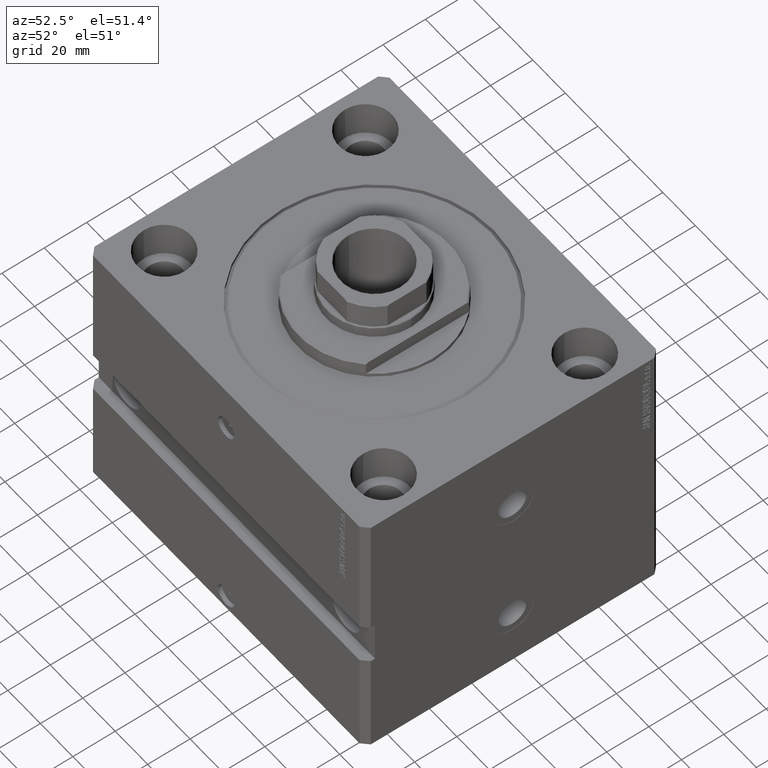
[diagram: clean part render]
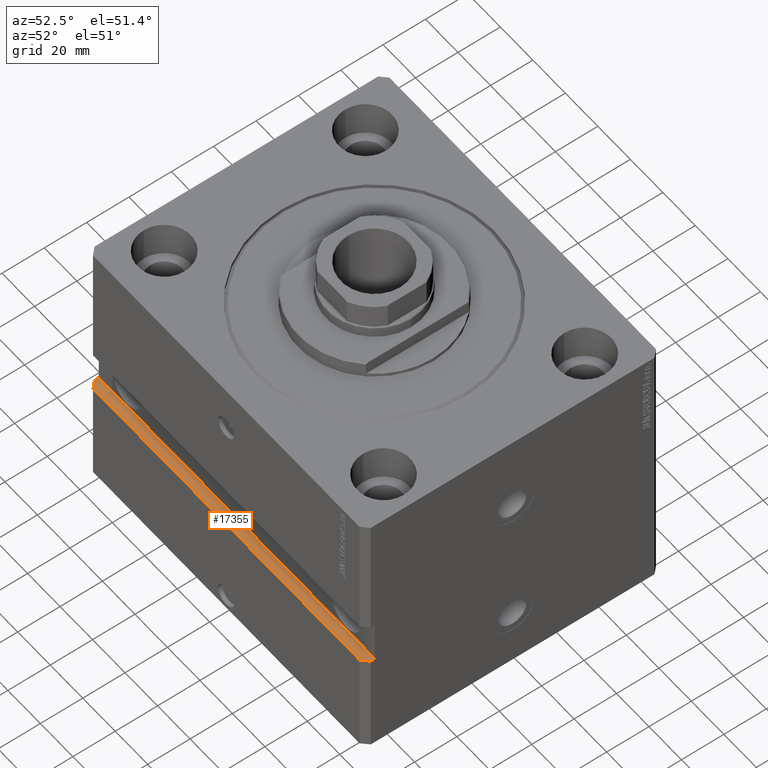
[diagram: same view with one face highlighted and labeled with its STEP entity id]
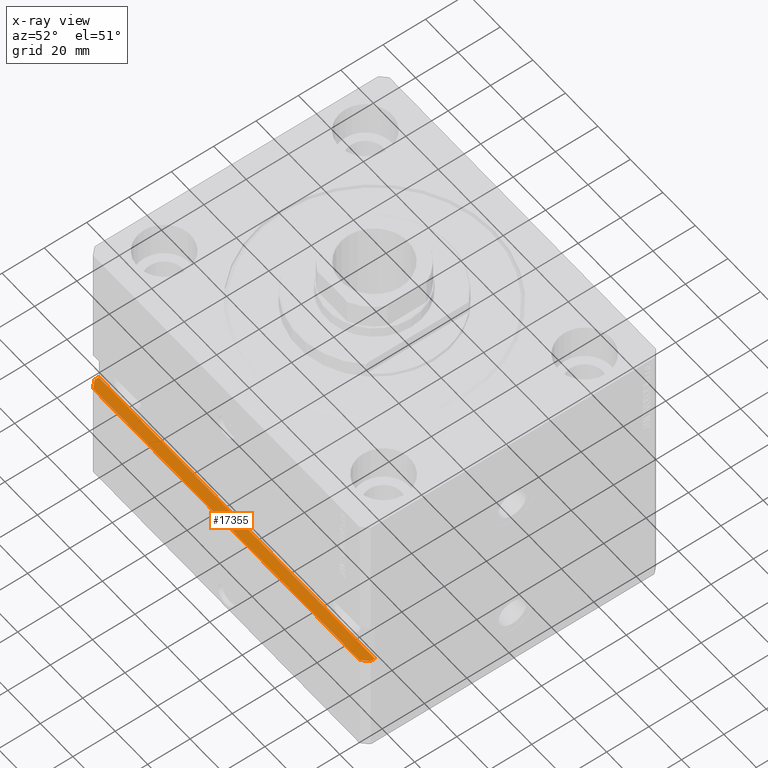
[diagram: x-ray of the same camera — body ghosted, the highlighted face saturated]
A machine part, auxiliary view. The second image highlights one B-rep face of the part: STEP entity #17355.
The next image is the same camera in x-ray: the body ghosted, the highlighted face saturated — about 0% of this face is hidden behind the body in this view.
In plain terms, the highlighted planar face has unit normal (0, 0, -1).
Its self-contained STEP definition (entity closure, byte-faithful):
#2909 = VERTEX_POINT ( 'NONE', #36075 ) ;
#5759 = PLANE ( 'NONE',  #26075 ) ;
#6995 = EDGE_CURVE ( 'NONE', #27681, #48357, #24012, .T. ) ;
#7274 = LINE ( 'NONE', #22133, #31584 ) ;
#7583 = EDGE_LOOP ( 'NONE', ( #7604, #10818, #40212, #25848, #16200, #21905 ) ) ;
#7604 = ORIENTED_EDGE ( 'NONE', *, *, #42665, .T. ) ;
#9146 = CARTESIAN_POINT ( 'NONE',  ( -85.00000000000001421, -65.00000000000001421, -80.00000000000001421 ) ) ;
#10818 = ORIENTED_EDGE ( 'NONE', *, *, #13051, .F. ) ;
#11413 = DIRECTION ( 'NONE',  ( 1.176083712526788232E-16, -1.000000000000000000, -0.000000000000000000 ) ) ;
#12396 = EDGE_CURVE ( 'NONE', #27681, #36484, #25651, .T. ) ;
#13051 = EDGE_CURVE ( 'NONE', #48357, #28211, #15367, .T. ) ;
#13841 = CARTESIAN_POINT ( 'NONE',  ( -85.00000000000001421, -67.00000000000000000, -80.00000000000001421 ) ) ;
#15367 = LINE ( 'NONE', #26273, #26079 ) ;
#16200 = ORIENTED_EDGE ( 'NONE', *, *, #16994, .T. ) ;
#16404 = FACE_OUTER_BOUND ( 'NONE', #7583, .T. ) ;
#16651 = DIRECTION ( 'NONE',  ( -1.000000000000000000, 0.000000000000000000, -0.000000000000000000 ) ) ;
#16994 = EDGE_CURVE ( 'NONE', #36484, #23238, #7274, .T. ) ;
#17064 = DIRECTION ( 'NONE',  ( 1.000000000000000000, 1.632680918566406300E-16, 0.000000000000000000 ) ) ;
#17355 = ADVANCED_FACE ( 'NONE', ( #16404 ), #5759, .F. ) ;
#17835 = DIRECTION ( 'NONE',  ( 1.000000000000000000, 1.632680918566406300E-16, 0.000000000000000000 ) ) ;
#20963 = CARTESIAN_POINT ( 'NONE',  ( -85.00000000000001421, -65.00000000000001421, -80.00000000000001421 ) ) ;
#21905 = ORIENTED_EDGE ( 'NONE', *, *, #44397, .T. ) ;
#22133 = CARTESIAN_POINT ( 'NONE',  ( -85.00000000000001421, -67.00000000000000000, -80.00000000000001421 ) ) ;
#23238 = VERTEX_POINT ( 'NONE', #43809 ) ;
#23839 = CARTESIAN_POINT ( 'NONE',  ( -85.00000000000001421, -65.00000000000001421, -80.00000000000001421 ) ) ;
#24012 = LINE ( 'NONE', #9146, #44005 ) ;
#25651 = LINE ( 'NONE', #20963, #48923 ) ;
#25848 = ORIENTED_EDGE ( 'NONE', *, *, #12396, .T. ) ;
#26075 = AXIS2_PLACEMENT_3D ( 'NONE', #23839, #46353, #16651 ) ;
#26079 = VECTOR ( 'NONE', #11413, 1000.000000000000000 ) ;
#26273 = CARTESIAN_POINT ( 'NONE',  ( 85.00000000000001421, -64.99999999999998579, -80.00000000000001421 ) ) ;
#26894 = CARTESIAN_POINT ( 'NONE',  ( 82.00000000000001421, -70.00000000000000000, -80.00000000000001421 ) ) ;
#27681 = VERTEX_POINT ( 'NONE', #37686 ) ;
#28211 = VERTEX_POINT ( 'NONE', #31092 ) ;
#28632 = DIRECTION ( 'NONE',  ( 1.176083712526788232E-16, -1.000000000000000000, -0.000000000000000000 ) ) ;
#28701 = CARTESIAN_POINT ( 'NONE',  ( 85.00000000000001421, -64.99999999999998579, -80.00000000000001421 ) ) ;
#31092 = CARTESIAN_POINT ( 'NONE',  ( 85.00000000000001421, -66.99999999999998579, -80.00000000000001421 ) ) ;
#31584 = VECTOR ( 'NONE', #48602, 1000.000000000000114 ) ;
#33663 = LINE ( 'NONE', #48751, #47657 ) ;
#34553 = DIRECTION ( 'NONE',  ( 0.7071067811865459074, 0.7071067811865491270, 0.000000000000000000 ) ) ;
#36075 = CARTESIAN_POINT ( 'NONE',  ( 82.00000000000001421, -69.99999999999998579, -80.00000000000001421 ) ) ;
#36484 = VERTEX_POINT ( 'NONE', #13841 ) ;
#37686 = CARTESIAN_POINT ( 'NONE',  ( -85.00000000000001421, -65.00000000000001421, -80.00000000000001421 ) ) ;
#40212 = ORIENTED_EDGE ( 'NONE', *, *, #6995, .F. ) ;
#41737 = LINE ( 'NONE', #26894, #48403 ) ;
#42665 = EDGE_CURVE ( 'NONE', #2909, #28211, #41737, .T. ) ;
#43809 = CARTESIAN_POINT ( 'NONE',  ( -82.00000000000000000, -70.00000000000001421, -80.00000000000001421 ) ) ;
#44005 = VECTOR ( 'NONE', #17064, 1000.000000000000000 ) ;
#44397 = EDGE_CURVE ( 'NONE', #23238, #2909, #33663, .T. ) ;
#46353 = DIRECTION ( 'NONE',  ( 0.000000000000000000, 0.000000000000000000, -1.000000000000000000 ) ) ;
#47657 = VECTOR ( 'NONE', #17835, 1000.000000000000000 ) ;
#48357 = VERTEX_POINT ( 'NONE', #28701 ) ;
#48403 = VECTOR ( 'NONE', #34553, 1000.000000000000000 ) ;
#48602 = DIRECTION ( 'NONE',  ( 0.7071067811865474617, -0.7071067811865474617, 0.000000000000000000 ) ) ;
#48751 = CARTESIAN_POINT ( 'NONE',  ( -85.00000000000001421, -70.00000000000001421, -80.00000000000001421 ) ) ;
#48923 = VECTOR ( 'NONE', #28632, 1000.000000000000000 ) ;